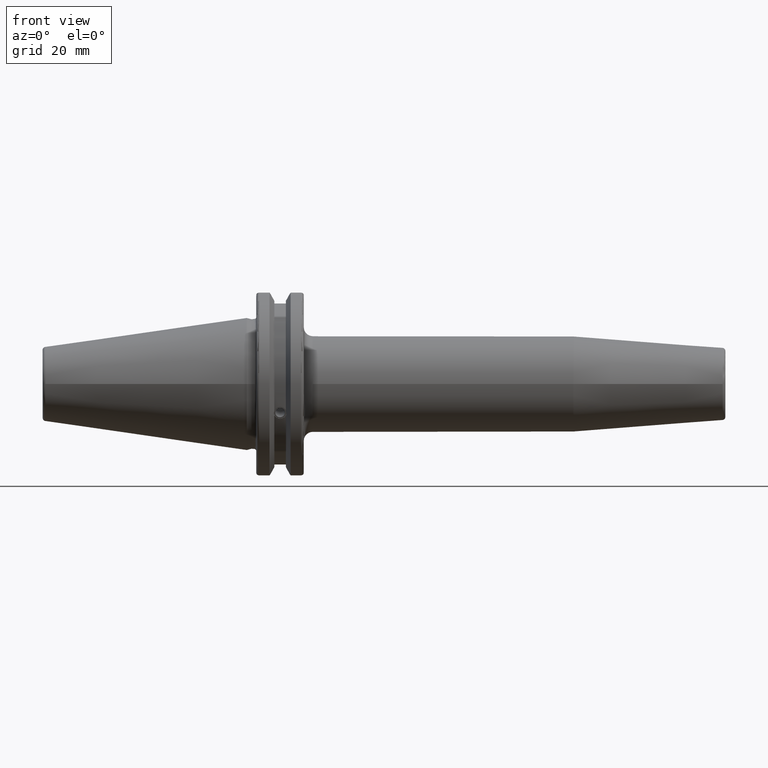
[diagram: clean part render]
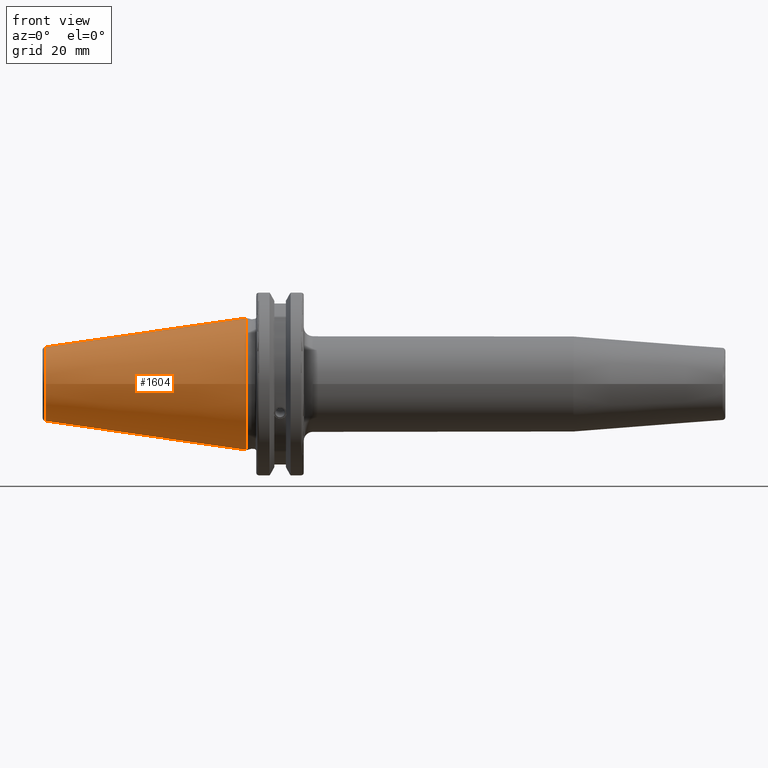
[diagram: same view with one face highlighted and labeled with its STEP entity id]
A machine part, front view. The second image highlights one B-rep face of the part: STEP entity #1604.
In plain terms, the highlighted conical surface has half-angle 8.297 deg.
Its self-contained STEP definition (entity closure, byte-faithful):
#68=CONICAL_SURFACE('',#1805,17.2484375,0.144812498238939);
#150=LINE('',#3044,#246);
#246=VECTOR('',#2226,17.2484375);
#437=FACE_OUTER_BOUND('',#545,.T.);
#545=EDGE_LOOP('',(#1400,#1401,#1402,#1403,#1404));
#637=CIRCLE('',#1799,12.3966635780937);
#638=CIRCLE('',#1800,12.3966635780937);
#642=CIRCLE('',#1806,22.225);
#797=VERTEX_POINT('',#3031);
#798=VERTEX_POINT('',#3032);
#801=VERTEX_POINT('',#3042);
#1013=EDGE_CURVE('',#797,#798,#637,.T.);
#1014=EDGE_CURVE('',#798,#797,#638,.T.);
#1018=EDGE_CURVE('',#801,#801,#642,.T.);
#1019=EDGE_CURVE('',#801,#798,#150,.T.);
#1400=ORIENTED_EDGE('',*,*,#1018,.F.);
#1401=ORIENTED_EDGE('',*,*,#1019,.T.);
#1402=ORIENTED_EDGE('',*,*,#1013,.F.);
#1403=ORIENTED_EDGE('',*,*,#1014,.F.);
#1404=ORIENTED_EDGE('',*,*,#1019,.F.);
#1604=ADVANCED_FACE('',(#437),#68,.T.);
#1799=AXIS2_PLACEMENT_3D('',#3033,#2210,#2211);
#1800=AXIS2_PLACEMENT_3D('',#3034,#2212,#2213);
#1805=AXIS2_PLACEMENT_3D('',#3041,#2222,#2223);
#1806=AXIS2_PLACEMENT_3D('',#3043,#2224,#2225);
#2210=DIRECTION('center_axis',(-1.,0.,0.));
#2211=DIRECTION('ref_axis',(0.,-1.,3.06161699786838E-17));
#2212=DIRECTION('center_axis',(-1.,0.,0.));
#2213=DIRECTION('ref_axis',(0.,-1.,3.06161699786838E-17));
#2222=DIRECTION('center_axis',(1.,0.,0.));
#2223=DIRECTION('ref_axis',(0.,1.,0.));
#2224=DIRECTION('center_axis',(1.,0.,0.));
#2225=DIRECTION('ref_axis',(0.,0.,-1.));
#2226=DIRECTION('',(-0.989532981063282,0.144306893071729,1.76724974695192E-17));
#3031=CARTESIAN_POINT('',(-67.3943068930717,-1.5181534371019E-15,12.3966635780937));
#3032=CARTESIAN_POINT('',(-67.3943068930718,-12.3966635780937,-1.5181534371019E-15));
#3033=CARTESIAN_POINT('Origin',(-67.3943068930717,0.,-1.89769179637738E-15));
#3034=CARTESIAN_POINT('Origin',(-67.3943068930717,0.,-1.89769179637738E-15));
#3041=CARTESIAN_POINT('Origin',(-34.125,0.,0.));
#3042=CARTESIAN_POINT('',(0.,-22.225,-2.72177751110499E-15));
#3043=CARTESIAN_POINT('Origin',(0.,0.,0.));
#3044=CARTESIAN_POINT('',(-34.125,-17.2484375,-2.11232437746682E-15));